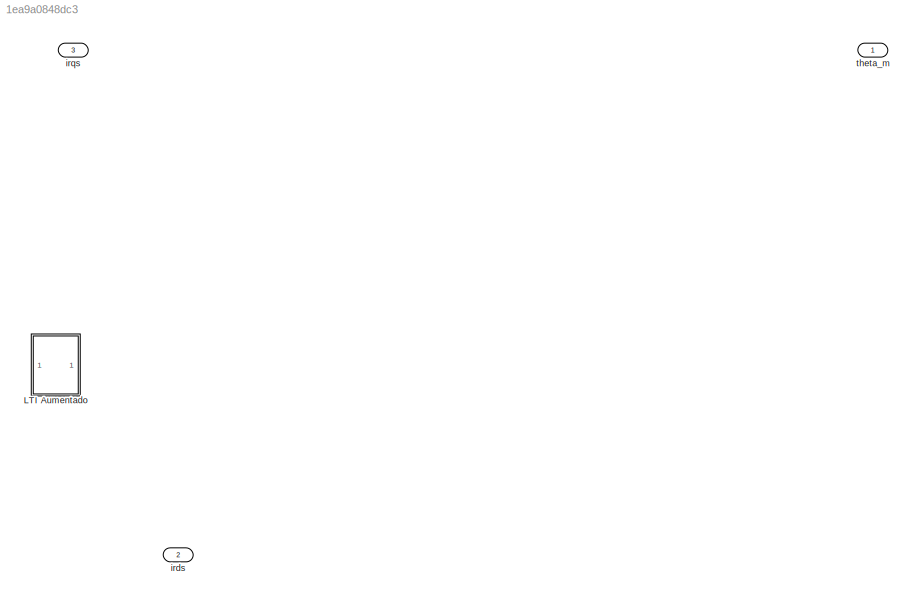
MODEL slx_1ea9a0848dc3
KIND model
CONFIG AbsTol = auto
CONFIG EnableMultiTasking = off
CONFIG FixedStep = auto
CONFIG MaxStep = auto
CONFIG MinStep = auto
CONFIG RelTol = 1e-3
CONFIG SampleTimeConstraint = Unconstrained
CONFIG SolverName = VariableStepAuto
CONFIG StartTime = 0.0
CONFIG StopTime = 1.3
WORKSPACE source: mxarray member
WORKSPACE Cts = 0.818
WORKSPACE Jeq = 5.65099476805e-06
WORKSPACE Ld = 0.0066
WORKSPACE Lls = 0.0008
WORKSPACE Lq = 0.0058
WORKSPACE Pp = 3
WORKSPACE Rs = 1.02
WORKSPACE Rts_amb = 146.7
WORKSPACE beq = 1.5e-05
WORKSPACE lambda_m = 0.01546
WORKSPACE r = 314.3008
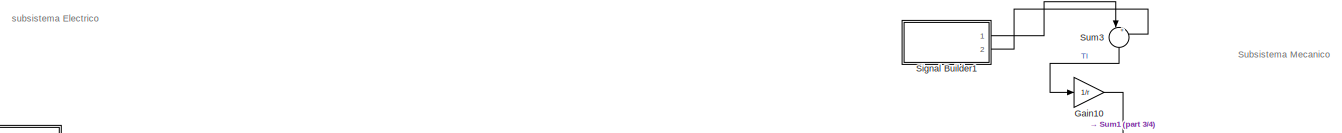
[diagram: LTI Aumentado - part 1/4, top center region]
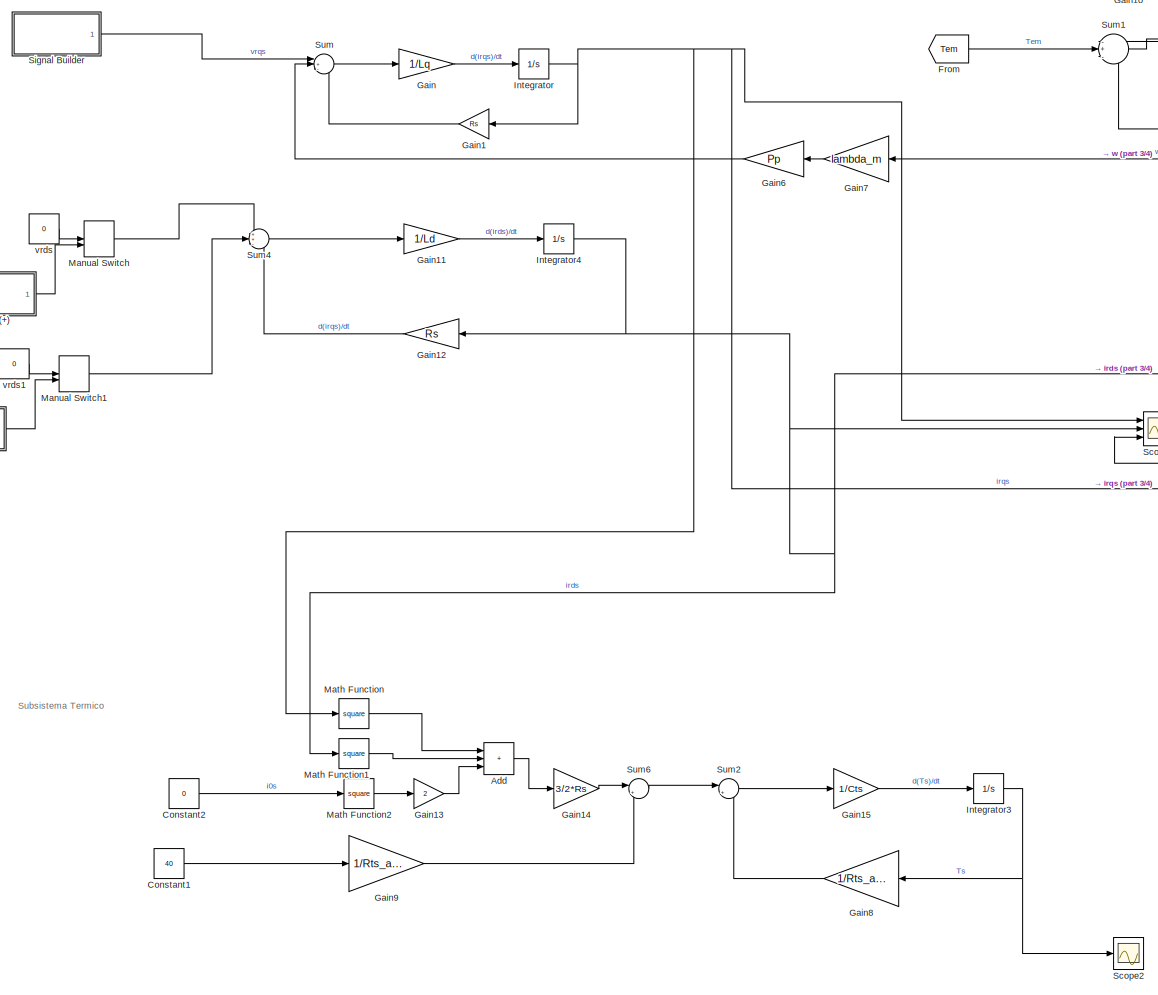
[diagram: LTI Aumentado - part 2/4, center side, full height]
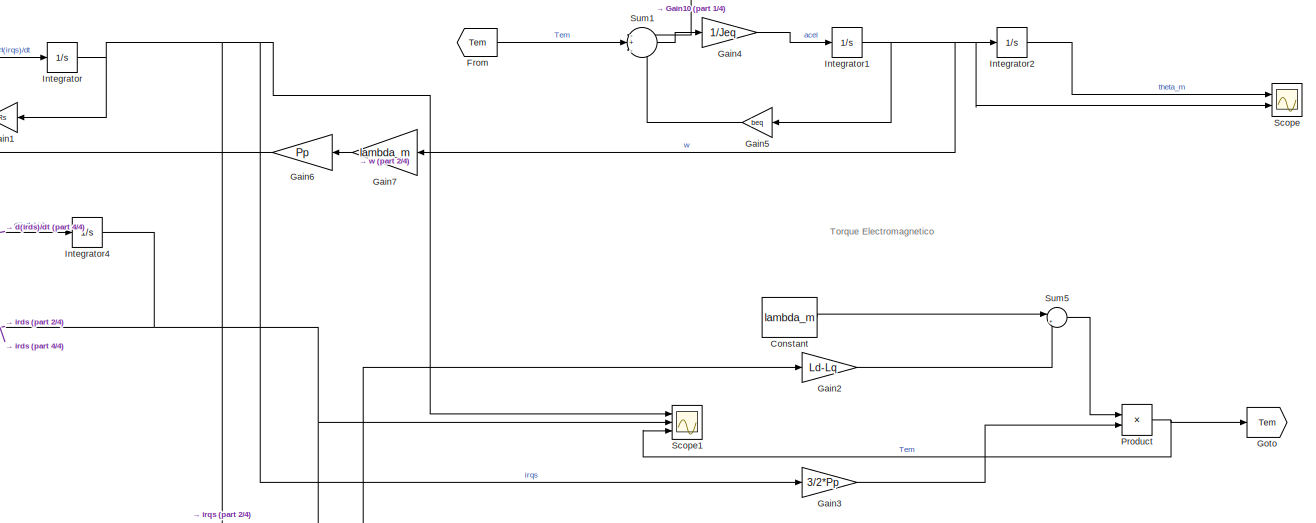
[diagram: LTI Aumentado - part 3/4, central region]
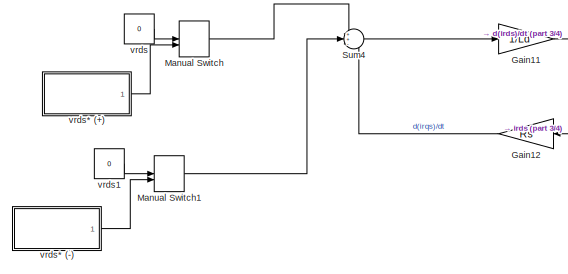
[diagram: LTI Aumentado - part 4/4, middle left region]
BLOCK [SubSystem] LTI Aumentado
  Ports = []
  RequestExecContextInheritance = off
BLOCK [Sum] LTI Aumentado/Add
  IconShape = rectangular
  Inputs = +++
  Ports = [3, 1]
BLOCK [Constant] LTI Aumentado/Constant
  Value = lambda_m
BLOCK [Constant] LTI Aumentado/Constant1
  Value = 40
BLOCK [Constant] LTI Aumentado/Constant2
  Value = 0
BLOCK [From] LTI Aumentado/From
  GotoTag = Tem
BLOCK [Gain] LTI Aumentado/Gain
  Gain = 1/Lq
BLOCK [Gain] LTI Aumentado/Gain1
  Gain = Rs
  NameLocation = top
BLOCK [Gain] LTI Aumentado/Gain10
  Gain = 1/r
BLOCK [Gain] LTI Aumentado/Gain11
  Gain = 1/Ld
BLOCK [Gain] LTI Aumentado/Gain12
  Gain = Rs
BLOCK [Gain] LTI Aumentado/Gain13
  Gain = 2
BLOCK [Gain] LTI Aumentado/Gain14
  Gain = 3/2*Rs
BLOCK [Gain] LTI Aumentado/Gain15
  Gain = 1/Cts
BLOCK [Gain] LTI Aumentado/Gain2
  Gain = Ld-Lq
BLOCK [Gain] LTI Aumentado/Gain3
  Gain = 3/2*Pp
BLOCK [Gain] LTI Aumentado/Gain4
  Gain = 1/Jeq
BLOCK [Gain] LTI Aumentado/Gain5
  Gain = beq
  NameLocation = top
BLOCK [Gain] LTI Aumentado/Gain6
  Gain = Pp
BLOCK [Gain] LTI Aumentado/Gain7
  Gain = lambda_m
BLOCK [Gain] LTI Aumentado/Gain8
  Gain = 1/Rts_amb
BLOCK [Gain] LTI Aumentado/Gain9
  Gain = 1/Rts_amb
BLOCK [Goto] LTI Aumentado/Goto
  GotoTag = Tem
BLOCK [Integrator] LTI Aumentado/Integrator
  Ports = [1, 1]
BLOCK [Integrator] LTI Aumentado/Integrator1
  Ports = [1, 1]
BLOCK [Integrator] LTI Aumentado/Integrator2
  Ports = [1, 1]
BLOCK [Integrator] LTI Aumentado/Integrator3
  InitialCondition = 40
  Ports = [1, 1]
BLOCK [Integrator] LTI Aumentado/Integrator4
  Ports = [1, 1]
BLOCK [ManualSwitch] LTI Aumentado/Manual Switch
BLOCK [ManualSwitch] LTI Aumentado/Manual Switch1
BLOCK [Math] LTI Aumentado/Math Function
  Operator = square
  Ports = [1, 1]
BLOCK [Math] LTI Aumentado/Math Function1
  Operator = square
  Ports = [1, 1]
BLOCK [Math] LTI Aumentado/Math Function2
  Operator = square
  Ports = [1, 1]
BLOCK [Product] LTI Aumentado/Product
  Ports = [2, 1]
BLOCK [Scope] LTI Aumentado/Scope
  Floating = off
  NumInputPorts = 2
  Ports = [2]
  ScopeSpecificationString = Simulink.scopes.TimeScopeBlockCfg('CurrentConfiguration', extmgr.ConfigurationSet(extmgr.Configuration('Core','General UI',true),extmgr.Configuration('Core','Source UI',true),extmgr.Configuration('Sources','WiredSimulink',true,'DataLogging',true,'DataLoggingVariableName','LTI_tita_w','DataLoggingSaveFormat','StructureWithTime'),extmgr.Configuration('Visuals','Time Domain',true,'SerializedDisplays'...<+2101ch>
BLOCK [Scope] LTI Aumentado/Scope1
  Floating = off
  NumInputPorts = 3
  Ports = [3]
  ScopeSpecificationString = Simulink.scopes.TimeScopeBlockCfg('CurrentConfiguration', extmgr.ConfigurationSet(extmgr.Configuration('Core','General UI',true),extmgr.Configuration('Core','Source UI',true),extmgr.Configuration('Sources','WiredSimulink',true,'DataLoggingVariableName','ScopeData1'),extmgr.Configuration('Visuals','Time Domain',true,'SerializedDisplays',{struct('MinYLimReal','-9.76892','MaxYLimReal','9.2517','YLabe...<+2735ch>
BLOCK [Scope] LTI Aumentado/Scope2
  Floating = off
  NumInputPorts = 1
  Ports = [1]
  ScopeSpecificationString = Simulink.scopes.TimeScopeBlockCfg('CurrentConfiguration', extmgr.ConfigurationSet(extmgr.Configuration('Core','General UI',true),extmgr.Configuration('Core','Source UI',true),extmgr.Configuration('Sources','WiredSimulink',true,'DataLoggingVariableName','ScopeData1'),extmgr.Configuration('Visuals','Time Domain',true,'SerializedDisplays',{struct('MinYLimReal','39.83238','MaxYLimReal','41.50862','YLa...<+1367ch>
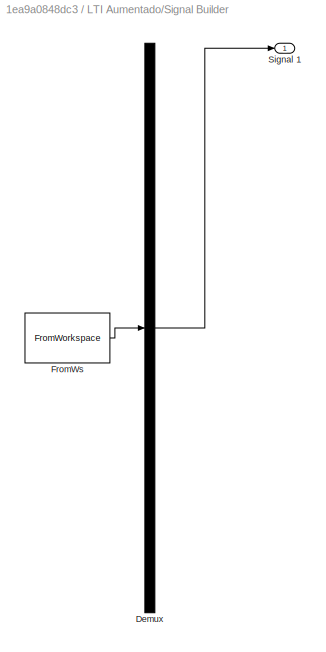
BLOCK [SubSystem] LTI Aumentado/Signal Builder
  ClipboardFcn = sigbuilder_block('clipboard');
  CloseFcn = sigbuilder_block('close');
  ContinueFcn = sigbuilder_block('continue');
  CopyFcn = sigbuilder_block('copy');
  DeleteFcn = sigbuilder_block('delete');
  LoadFcn = sigbuilder_block('load');
  MaskHideContents = on
  ModelCloseFcn = sigbuilder_block('modelClose');
  NameChangeFcn = sigbuilder_block('namechange');
  OpenFcn = sigbuilder_block('open',[437.6 199.2 550.4 400 ]);
  PauseFcn = sigbuilder_block('pause');
  Ports = [0, 1]
  PreSaveFcn = sigbuilder_block('preSave');
  RequestExecContextInheritance = off
  StartFcn = sigbuilder_block('start');
  StopFcn = sigbuilder_block('stop');
  Tag = STV Subsys
BLOCK [Demux] LTI Aumentado/Signal Builder/Demux
  DisplayOption = none
  Outputs = 1
  Ports = [1, 1]
  Tag = STV Demux
BLOCK [FromWorkspace] LTI Aumentado/Signal Builder/FromWs
  Tag = STV FromWs
  VariableName = tuvar
BLOCK [Outport] LTI Aumentado/Signal Builder/Signal 1
  Tag = STV Outport
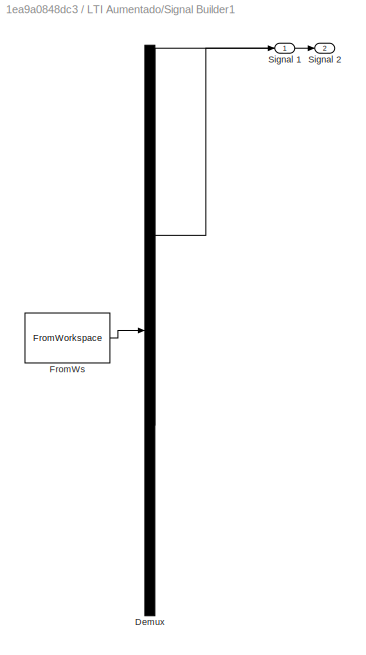
BLOCK [SubSystem] LTI Aumentado/Signal Builder1
  ClipboardFcn = sigbuilder_block('clipboard');
  CloseFcn = sigbuilder_block('close');
  ContinueFcn = sigbuilder_block('continue');
  CopyFcn = sigbuilder_block('copy');
  DeleteFcn = sigbuilder_block('delete');
  LoadFcn = sigbuilder_block('load');
  MaskHideContents = on
  ModelCloseFcn = sigbuilder_block('modelClose');
  NameChangeFcn = sigbuilder_block('namechange');
  OpenFcn = sigbuilder_block('open',[437.6 199.2 550.4 400 ]);
  PauseFcn = sigbuilder_block('pause');
  Ports = [0, 2]
  PreSaveFcn = sigbuilder_block('preSave');
  RequestExecContextInheritance = off
  StartFcn = sigbuilder_block('start');
  StopFcn = sigbuilder_block('stop');
  Tag = STV Subsys
BLOCK [Demux] LTI Aumentado/Signal Builder1/Demux
  DisplayOption = none
  Outputs = 2
  Ports = [1, 2]
  Tag = STV Demux
BLOCK [FromWorkspace] LTI Aumentado/Signal Builder1/FromWs
  Tag = STV FromWs
  VariableName = tuvar
BLOCK [Outport] LTI Aumentado/Signal Builder1/Signal 1
  Tag = STV Outport
BLOCK [Outport] LTI Aumentado/Signal Builder1/Signal 2
  Port = 2
  Tag = STV Outport
BLOCK [Sum] LTI Aumentado/Sum
  Inputs = |+--
  Ports = [3, 1]
BLOCK [Sum] LTI Aumentado/Sum1
  Inputs = -+-
  Ports = [3, 1]
BLOCK [Sum] LTI Aumentado/Sum2
  Inputs = |+-
  Ports = [2, 1]
BLOCK [Sum] LTI Aumentado/Sum3
  Inputs = |++
  NameLocation = left
  Ports = [2, 1]
BLOCK [Sum] LTI Aumentado/Sum4
  Inputs = ++-
  Ports = [3, 1]
BLOCK [Sum] LTI Aumentado/Sum5
  Inputs = |++
  Ports = [2, 1]
BLOCK [Sum] LTI Aumentado/Sum6
  Inputs = |++
  Ports = [2, 1]
BLOCK [Constant] LTI Aumentado/vrds
  Value = 0
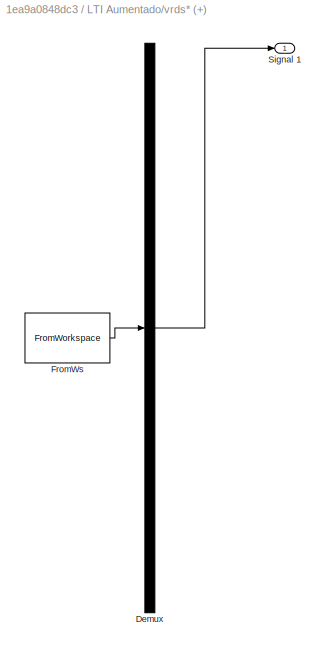
BLOCK [SubSystem] LTI Aumentado/vrds* (+)
  ClipboardFcn = sigbuilder_block('clipboard');
  CloseFcn = sigbuilder_block('close');
  ContinueFcn = sigbuilder_block('continue');
  CopyFcn = sigbuilder_block('copy');
  DeleteFcn = sigbuilder_block('delete');
  LoadFcn = sigbuilder_block('load');
  MaskHideContents = on
  ModelCloseFcn = sigbuilder_block('modelClose');
  NameChangeFcn = sigbuilder_block('namechange');
  OpenFcn = sigbuilder_block('open',[437.6 199.2 550.4 400 ]);
  PauseFcn = sigbuilder_block('pause');
  Ports = [0, 1]
  PreSaveFcn = sigbuilder_block('preSave');
  RequestExecContextInheritance = off
  StartFcn = sigbuilder_block('start');
  StopFcn = sigbuilder_block('stop');
  Tag = STV Subsys
BLOCK [Demux] LTI Aumentado/vrds* (+)/Demux
  DisplayOption = none
  Outputs = 1
  Ports = [1, 1]
  Tag = STV Demux
BLOCK [FromWorkspace] LTI Aumentado/vrds* (+)/FromWs
  Tag = STV FromWs
  VariableName = tuvar
BLOCK [Outport] LTI Aumentado/vrds* (+)/Signal 1
  Tag = STV Outport
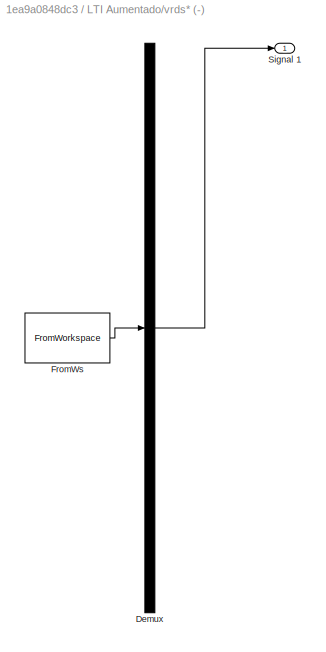
BLOCK [SubSystem] LTI Aumentado/vrds* (-)
  ClipboardFcn = sigbuilder_block('clipboard');
  CloseFcn = sigbuilder_block('close');
  ContinueFcn = sigbuilder_block('continue');
  CopyFcn = sigbuilder_block('copy');
  DeleteFcn = sigbuilder_block('delete');
  LoadFcn = sigbuilder_block('load');
  MaskHideContents = on
  ModelCloseFcn = sigbuilder_block('modelClose');
  NameChangeFcn = sigbuilder_block('namechange');
  OpenFcn = sigbuilder_block('open',[437.6 199.2 550.4 400 ]);
  PauseFcn = sigbuilder_block('pause');
  Ports = [0, 1]
  PreSaveFcn = sigbuilder_block('preSave');
  RequestExecContextInheritance = off
  StartFcn = sigbuilder_block('start');
  StopFcn = sigbuilder_block('stop');
  Tag = STV Subsys
BLOCK [Demux] LTI Aumentado/vrds* (-)/Demux
  DisplayOption = none
  Outputs = 1
  Ports = [1, 1]
  Tag = STV Demux
BLOCK [FromWorkspace] LTI Aumentado/vrds* (-)/FromWs
  Tag = STV FromWs
  VariableName = tuvar
BLOCK [Outport] LTI Aumentado/vrds* (-)/Signal 1
  Tag = STV Outport
BLOCK [Constant] LTI Aumentado/vrds1
  Value = 0
BLOCK [Outport] irds
  Port = 2
BLOCK [Outport] irqs
  Port = 3
BLOCK [Outport] theta_m
ANNOTATION LTI Aumentado: Subsistema Mecanico
ANNOTATION LTI Aumentado: Subsistema Termico
ANNOTATION LTI Aumentado: Torque Electromagnetico
ANNOTATION LTI Aumentado: subsistema Electrico
LINE LTI Aumentado/Add:1 -> LTI Aumentado/Gain14:1
LINE LTI Aumentado/Constant1:1 -> LTI Aumentado/Gain9:1
LINE LTI Aumentado/Constant2:1 -> LTI Aumentado/Math Function2:1
LINE LTI Aumentado/Constant:1 -> LTI Aumentado/Sum5:1
LINE LTI Aumentado/From:1 -> LTI Aumentado/Sum1:2
LINE LTI Aumentado/Gain10:1 -> LTI Aumentado/Sum1:1
LINE LTI Aumentado/Gain11:1 -> LTI Aumentado/Integrator4:1
LINE LTI Aumentado/Gain12:1 -> LTI Aumentado/Sum4:3
LINE LTI Aumentado/Gain13:1 -> LTI Aumentado/Add:3
LINE LTI Aumentado/Gain14:1 -> LTI Aumentado/Sum6:1
LINE LTI Aumentado/Gain15:1 -> LTI Aumentado/Integrator3:1
LINE LTI Aumentado/Gain1:1 -> LTI Aumentado/Sum:3
LINE LTI Aumentado/Gain2:1 -> LTI Aumentado/Sum5:2
LINE LTI Aumentado/Gain3:1 -> LTI Aumentado/Product:2
LINE LTI Aumentado/Gain4:1 -> LTI Aumentado/Integrator1:1
LINE LTI Aumentado/Gain5:1 -> LTI Aumentado/Sum1:3
LINE LTI Aumentado/Gain6:1 -> LTI Aumentado/Sum:2
LINE LTI Aumentado/Gain7:1 -> LTI Aumentado/Gain6:1
LINE LTI Aumentado/Gain8:1 -> LTI Aumentado/Sum2:2
LINE LTI Aumentado/Gain9:1 -> LTI Aumentado/Sum6:2
LINE LTI Aumentado/Gain:1 -> LTI Aumentado/Integrator:1
NET LTI Aumentado/Integrator1:1 -> LTI Aumentado/Gain5:1, LTI Aumentado/Gain7:1, LTI Aumentado/Integrator2:1, LTI Aumentado/Scope:2
LINE LTI Aumentado/Integrator2:1 -> LTI Aumentado/Scope:1
NET LTI Aumentado/Integrator3:1 -> LTI Aumentado/Gain8:1, LTI Aumentado/Scope2:1
NET LTI Aumentado/Integrator4:1 -> LTI Aumentado/Gain12:1, LTI Aumentado/Gain2:1, LTI Aumentado/Math Function1:1, LTI Aumentado/Scope1:2
NET LTI Aumentado/Integrator:1 -> LTI Aumentado/Gain1:1, LTI Aumentado/Gain3:1, LTI Aumentado/Math Function:1, LTI Aumentado/Scope1:1
LINE LTI Aumentado/Manual Switch1:1 -> LTI Aumentado/Sum4:2
LINE LTI Aumentado/Manual Switch:1 -> LTI Aumentado/Sum4:1
LINE LTI Aumentado/Math Function1:1 -> LTI Aumentado/Add:2
LINE LTI Aumentado/Math Function2:1 -> LTI Aumentado/Gain13:1
LINE LTI Aumentado/Math Function:1 -> LTI Aumentado/Add:1
NET LTI Aumentado/Product:1 -> LTI Aumentado/Goto:1, LTI Aumentado/Scope1:3
LINE LTI Aumentado/Signal Builder1:1 -> LTI Aumentado/Sum3:1
LINE LTI Aumentado/Signal Builder1:2 -> LTI Aumentado/Sum3:2
LINE LTI Aumentado/Signal Builder:1 -> LTI Aumentado/Sum:1
LINE LTI Aumentado/Sum1:1 -> LTI Aumentado/Gain4:1
LINE LTI Aumentado/Sum2:1 -> LTI Aumentado/Gain15:1
LINE LTI Aumentado/Sum3:1 -> LTI Aumentado/Gain10:1
LINE LTI Aumentado/Sum4:1 -> LTI Aumentado/Gain11:1
LINE LTI Aumentado/Sum5:1 -> LTI Aumentado/Product:1
LINE LTI Aumentado/Sum6:1 -> LTI Aumentado/Sum2:1
LINE LTI Aumentado/Sum:1 -> LTI Aumentado/Gain:1
LINE LTI Aumentado/vrds* (+):1 -> LTI Aumentado/Manual Switch:2
LINE LTI Aumentado/vrds* (-):1 -> LTI Aumentado/Manual Switch1:2
LINE LTI Aumentado/vrds1:1 -> LTI Aumentado/Manual Switch1:1
LINE LTI Aumentado/vrds:1 -> LTI Aumentado/Manual Switch:1
note: NET lines group one-source signal fan-out (src -> all destinations, sorted); 1:1 wires keep LINE
